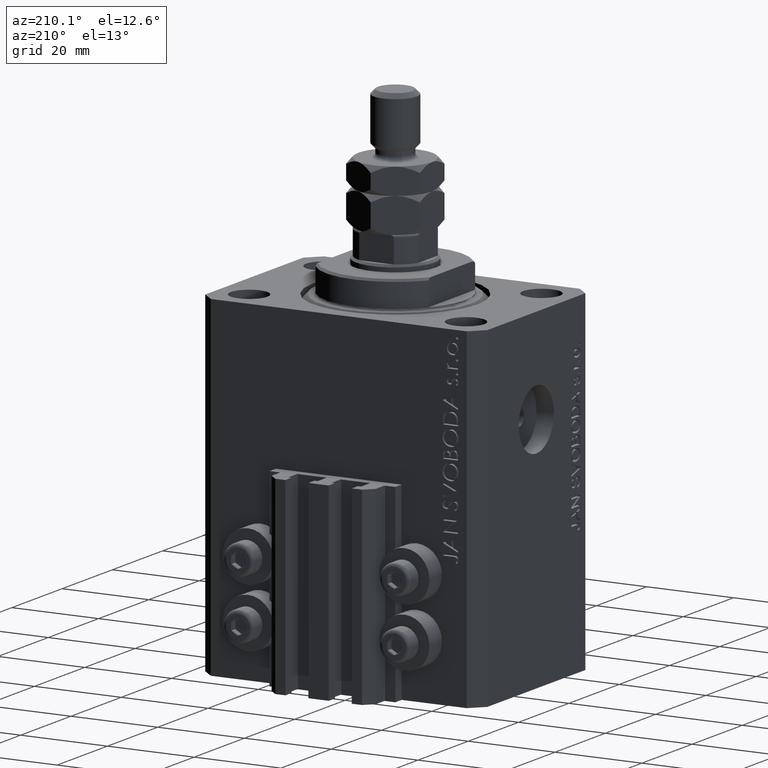
[diagram: clean part render]
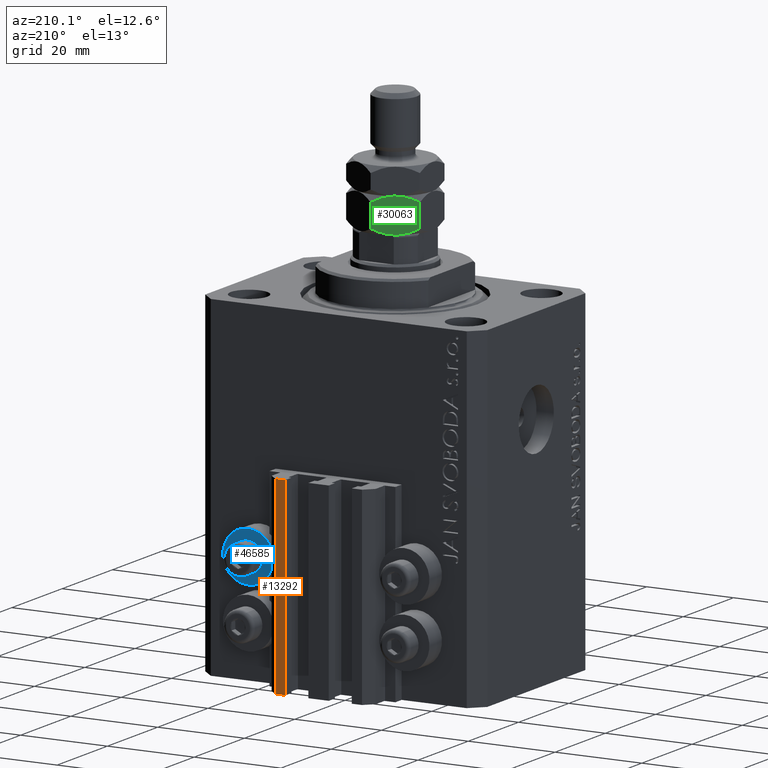
[diagram: same view with three faces highlighted in distinct colors, each labeled with its STEP entity id]
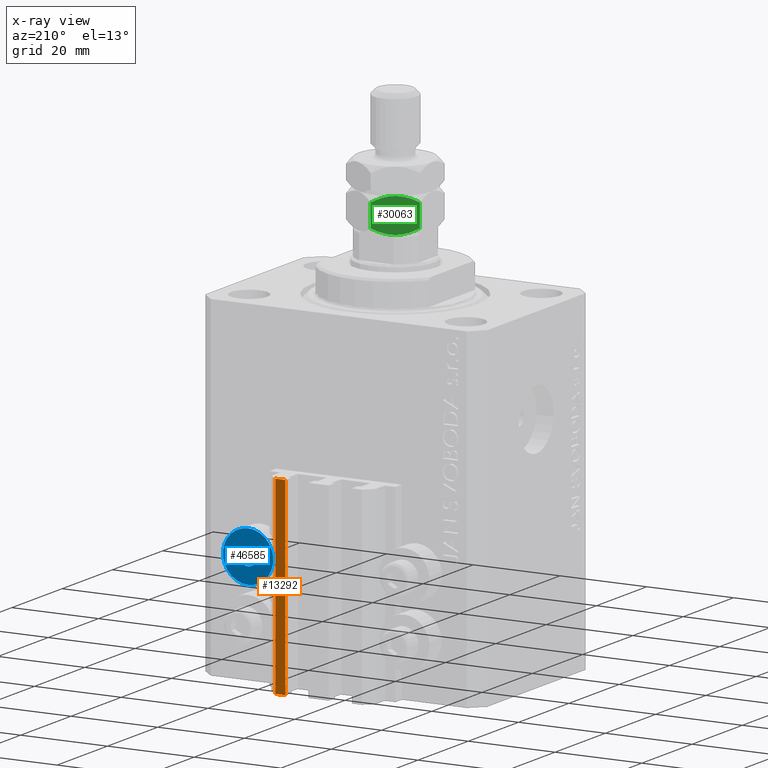
[diagram: x-ray of the same camera — body ghosted, the three highlighted faces saturated]
A machine part, auxiliary view with three faces highlighted in distinct colors.
The next image is the same camera in x-ray (body ghosted, the three faces saturated) — at least one of them is partly hidden behind the body in this view.
Their STEP definitions:

[orange] entity #13292 — the highlighted planar face has unit normal (-0, 1, 0).
#148 = VECTOR ( 'NONE', #20767, 1000.000000000000000 ) ;
#1205 = AXIS2_PLACEMENT_3D ( 'NONE', #8122, #7392, #26934 ) ;
#2760 = CARTESIAN_POINT ( 'NONE',  ( 7.649999999999995026, 30.49999999999949196, -77.00000000000000000 ) ) ;
#5203 = EDGE_CURVE ( 'NONE', #42327, #41005, #48225, .T. ) ;
#5549 = VECTOR ( 'NONE', #31768, 1000.000000000000000 ) ;
#6007 = DIRECTION ( 'NONE',  ( 0.000000000000000000, 0.000000000000000000, 1.000000000000000000 ) ) ;
#6423 = CARTESIAN_POINT ( 'NONE',  ( 9.999999999999994671, 30.49999999999949551, -33.00000000000000000 ) ) ;
#6477 = VECTOR ( 'NONE', #11052, 1000.000000000000000 ) ;
#7392 = DIRECTION ( 'NONE',  ( -1.476360405086644852E-15, 1.000000000000000000, 0.000000000000000000 ) ) ;
#8122 = CARTESIAN_POINT ( 'NONE',  ( 9.999999999999994671, 30.49999999999949551, -77.00000000000000000 ) ) ;
#9183 = EDGE_CURVE ( 'NONE', #41005, #42548, #32273, .T. ) ;
#11052 = DIRECTION ( 'NONE',  ( -1.000000000000000000, -1.476360405086644852E-15, 0.000000000000000000 ) ) ;
#11392 = ORIENTED_EDGE ( 'NONE', *, *, #9183, .T. ) ;
#11977 = EDGE_CURVE ( 'NONE', #42327, #19999, #28050, .T. ) ;
#12084 = PLANE ( 'NONE',  #1205 ) ;
#13292 = ADVANCED_FACE ( 'NONE', ( #46039 ), #12084, .T. ) ;
#17987 = CARTESIAN_POINT ( 'NONE',  ( 9.999999999999994671, 30.49999999999949551, -77.00000000000000000 ) ) ;
#18777 = LINE ( 'NONE', #33908, #148 ) ;
#19999 = VERTEX_POINT ( 'NONE', #6423 ) ;
#20767 = DIRECTION ( 'NONE',  ( -1.000000000000000000, -1.476360405086644852E-15, 0.000000000000000000 ) ) ;
#23027 = VECTOR ( 'NONE', #6007, 1000.000000000000000 ) ;
#24790 = ORIENTED_EDGE ( 'NONE', *, *, #5203, .T. ) ;
#26934 = DIRECTION ( 'NONE',  ( -1.000000000000000000, -1.476360405086644852E-15, 0.000000000000000000 ) ) ;
#28050 = LINE ( 'NONE', #35735, #5549 ) ;
#31340 = ORIENTED_EDGE ( 'NONE', *, *, #45147, .F. ) ;
#31768 = DIRECTION ( 'NONE',  ( 0.000000000000000000, 0.000000000000000000, 1.000000000000000000 ) ) ;
#32273 = LINE ( 'NONE', #2760, #23027 ) ;
#32631 = CARTESIAN_POINT ( 'NONE',  ( 9.999999999999994671, 30.49999999999949551, -77.00000000000000000 ) ) ;
#33908 = CARTESIAN_POINT ( 'NONE',  ( 9.999999999999994671, 30.49999999999949551, -33.00000000000000000 ) ) ;
#33949 = CARTESIAN_POINT ( 'NONE',  ( 7.649999999999995026, 30.49999999999949196, -77.00000000000000000 ) ) ;
#35735 = CARTESIAN_POINT ( 'NONE',  ( 9.999999999999994671, 30.49999999999949551, -77.00000000000000000 ) ) ;
#36991 = ORIENTED_EDGE ( 'NONE', *, *, #11977, .F. ) ;
#41005 = VERTEX_POINT ( 'NONE', #33949 ) ;
#42327 = VERTEX_POINT ( 'NONE', #32631 ) ;
#42548 = VERTEX_POINT ( 'NONE', #44146 ) ;
#44146 = CARTESIAN_POINT ( 'NONE',  ( 7.649999999999995026, 30.49999999999949196, -33.00000000000000000 ) ) ;
#45147 = EDGE_CURVE ( 'NONE', #19999, #42548, #18777, .T. ) ;
#45884 = EDGE_LOOP ( 'NONE', ( #31340, #36991, #24790, #11392 ) ) ;
#46039 = FACE_OUTER_BOUND ( 'NONE', #45884, .T. ) ;
#48225 = LINE ( 'NONE', #17987, #6477 ) ;

[blue] entity #46585 — the highlighted planar face has unit normal (0, -1, 0).
#2629 = CARTESIAN_POINT ( 'NONE',  ( 18.00000000000000355, 27.49999999996051514, -52.40000000000000568 ) ) ;
#4063 = DIRECTION ( 'NONE',  ( 0.000000000000000000, -1.000000000000000000, -0.000000000000000000 ) ) ;
#4915 = DIRECTION ( 'NONE',  ( 0.000000000000000000, 0.000000000000000000, 1.000000000000000000 ) ) ;
#5824 = ORIENTED_EDGE ( 'NONE', *, *, #21295, .T. ) ;
#6261 = DIRECTION ( 'NONE',  ( 0.000000000000000000, 0.000000000000000000, 1.000000000000000000 ) ) ;
#7009 = ORIENTED_EDGE ( 'NONE', *, *, #27446, .T. ) ;
#7987 = VERTEX_POINT ( 'NONE', #2629 ) ;
#8300 = DIRECTION ( 'NONE',  ( -0.000000000000000000, -1.000000000000000000, -0.000000000000000000 ) ) ;
#9690 = AXIS2_PLACEMENT_3D ( 'NONE', #19479, #34597, #12541 ) ;
#11725 = PLANE ( 'NONE',  #40545 ) ;
#12541 = DIRECTION ( 'NONE',  ( 0.000000000000000000, 0.000000000000000000, 1.000000000000000000 ) ) ;
#12705 = EDGE_CURVE ( 'NONE', #24703, #17518, #39070, .T. ) ;
#12745 = AXIS2_PLACEMENT_3D ( 'NONE', #40460, #36498, #6261 ) ;
#15204 = FACE_OUTER_BOUND ( 'NONE', #29983, .T. ) ;
#15979 = CARTESIAN_POINT ( 'NONE',  ( 18.00000000000000355, 27.49999999996051514, -50.39999999999999858 ) ) ;
#17518 = VERTEX_POINT ( 'NONE', #45398 ) ;
#19479 = CARTESIAN_POINT ( 'NONE',  ( 18.00000000000000355, 27.49999999996051514, -50.39999999999999858 ) ) ;
#19530 = DIRECTION ( 'NONE',  ( -0.000000000000000000, -1.000000000000000000, -0.000000000000000000 ) ) ;
#21295 = EDGE_CURVE ( 'NONE', #7987, #28980, #24712, .T. ) ;
#23202 = AXIS2_PLACEMENT_3D ( 'NONE', #15979, #8300, #46222 ) ;
#24703 = VERTEX_POINT ( 'NONE', #33809 ) ;
#24712 = CIRCLE ( 'NONE', #9690, 2.000000000000001776 ) ;
#26329 = EDGE_LOOP ( 'NONE', ( #7009, #5824 ) ) ;
#26950 = CARTESIAN_POINT ( 'NONE',  ( 18.00000000000000355, 27.49999999996051514, -48.39999999999999858 ) ) ;
#27446 = EDGE_CURVE ( 'NONE', #28980, #7987, #42808, .T. ) ;
#28980 = VERTEX_POINT ( 'NONE', #26950 ) ;
#29046 = EDGE_CURVE ( 'NONE', #17518, #24703, #33667, .T. ) ;
#29983 = EDGE_LOOP ( 'NONE', ( #46636, #44446 ) ) ;
#31668 = CARTESIAN_POINT ( 'NONE',  ( 18.00000000000000355, 27.49999999996051514, -50.39999999999999858 ) ) ;
#33667 = CIRCLE ( 'NONE', #40010, 5.799999999999999822 ) ;
#33797 = CARTESIAN_POINT ( 'NONE',  ( 12.20000000000000284, 27.49999999996051514, -50.39999999999999858 ) ) ;
#33809 = CARTESIAN_POINT ( 'NONE',  ( 18.00000000000000355, 27.49999999996051514, -56.20000000000000284 ) ) ;
#34296 = DIRECTION ( 'NONE',  ( -0.000000000000000000, 0.000000000000000000, -1.000000000000000000 ) ) ;
#34597 = DIRECTION ( 'NONE',  ( -0.000000000000000000, -1.000000000000000000, -0.000000000000000000 ) ) ;
#36498 = DIRECTION ( 'NONE',  ( -0.000000000000000000, -1.000000000000000000, -0.000000000000000000 ) ) ;
#39070 = CIRCLE ( 'NONE', #23202, 5.799999999999999822 ) ;
#40010 = AXIS2_PLACEMENT_3D ( 'NONE', #31668, #19530, #4915 ) ;
#40460 = CARTESIAN_POINT ( 'NONE',  ( 18.00000000000000355, 27.49999999996051514, -50.39999999999999858 ) ) ;
#40545 = AXIS2_PLACEMENT_3D ( 'NONE', #33797, #4063, #34296 ) ;
#42808 = CIRCLE ( 'NONE', #12745, 2.000000000000001776 ) ;
#44446 = ORIENTED_EDGE ( 'NONE', *, *, #12705, .F. ) ;
#44945 = FACE_BOUND ( 'NONE', #26329, .T. ) ;
#45398 = CARTESIAN_POINT ( 'NONE',  ( 18.00000000000000355, 27.49999999996051514, -44.60000000000000142 ) ) ;
#46222 = DIRECTION ( 'NONE',  ( 0.000000000000000000, 0.000000000000000000, 1.000000000000000000 ) ) ;
#46585 = ADVANCED_FACE ( 'NONE', ( #44945, #15204 ), #11725, .F. ) ;
#46636 = ORIENTED_EDGE ( 'NONE', *, *, #29046, .F. ) ;

[green] entity #30063 — the highlighted planar face has unit normal (0.5, -0.866, 0).
#107 = B_SPLINE_CURVE_WITH_KNOTS ( 'NONE', 3,
 ( #31844, #5090, #4839, #16723, #874, #42737 ),
 .UNSPECIFIED., .F., .F.,
 ( 4, 2, 4 ),
 ( 0.005087299150080244227, 0.007613005268011861781, 0.01013871138594347847 ),
 .UNSPECIFIED. ) ;
#713 = CARTESIAN_POINT ( 'NONE',  ( 0.000000000000000000, 9.814954576223636096, 8.000000000000000000 ) ) ;
#874 = CARTESIAN_POINT ( 'NONE',  ( -0.6656893889372521578, 9.430618628324037189, 0.9306186283239277213 ) ) ;
#2092 = VERTEX_POINT ( 'NONE', #25173 ) ;
#2257 = VERTEX_POINT ( 'NONE', #23679 ) ;
#3561 = ORIENTED_EDGE ( 'NONE', *, *, #24620, .F. ) ;
#3582 = CARTESIAN_POINT ( 'NONE',  ( -2.407069963478076779, 8.425232084851307590, 7.746375910675348919 ) ) ;
#4839 = CARTESIAN_POINT ( 'NONE',  ( -2.784079206026081721, 8.207565697179243003, 0.1305202873832130295 ) ) ;
#5090 = CARTESIAN_POINT ( 'NONE',  ( -3.510754653168324246, 7.788019432158175270, -2.226002585384300502E-15 ) ) ;
#6860 = EDGE_LOOP ( 'NONE', ( #48810, #44839, #43579, #3561, #25127, #22012 ) ) ;
#8216 = EDGE_CURVE ( 'NONE', #2092, #45825, #107, .T. ) ;
#8444 = CARTESIAN_POINT ( 'NONE',  ( -4.249999999999994671, 7.361215932167727516, 8.000000000000000000 ) ) ;
#8865 = VECTOR ( 'NONE', #15638, 1000.000000000000000 ) ;
#8922 = CARTESIAN_POINT ( 'NONE',  ( -4.249999999999996447, 7.361215932167731957, 0.000000000000000000 ) ) ;
#11661 = VERTEX_POINT ( 'NONE', #31577 ) ;
#11878 = CARTESIAN_POINT ( 'NONE',  ( -6.092930036521920556, 6.297199779484152771, 0.2536240893246534123 ) ) ;
#12659 = CARTESIAN_POINT ( 'NONE',  ( -7.834310611062749174, 5.291813236011422283, 7.069381371676069392 ) ) ;
#13759 = CARTESIAN_POINT ( 'NONE',  ( -8.500000000000001776, 4.907477288111821601, 6.685045423776368345 ) ) ;
#15638 = DIRECTION ( 'NONE',  ( -0.000000000000000000, -0.000000000000000000, -1.000000000000000000 ) ) ;
#15878 = CARTESIAN_POINT ( 'NONE',  ( -4.989245346831672201, 6.934412432177284202, 8.000000000000005329 ) ) ;
#16133 = CARTESIAN_POINT ( 'NONE',  ( -8.500000000000001776, 4.907477288111821601, 6.685045423776368345 ) ) ;
#16345 = CARTESIAN_POINT ( 'NONE',  ( -8.500000000000001776, 4.907477288111821601, 1.314954576223634097 ) ) ;
#16382 = CARTESIAN_POINT ( 'NONE',  ( -8.500000000000001776, 4.907477288111821601, 8.000000000000000000 ) ) ;
#16585 = CARTESIAN_POINT ( 'NONE',  ( -5.733718739115173157, 6.504590518737894733, 0.1608217079418319817 ) ) ;
#16723 = CARTESIAN_POINT ( 'NONE',  ( -1.350892646810552433, 9.035016342941277756, 0.6009384127361191430 ) ) ;
#18678 = CARTESIAN_POINT ( 'NONE',  ( -4.249999999999994671, 7.361215932167727516, 8.000000000000000000 ) ) ;
#19598 = CARTESIAN_POINT ( 'NONE',  ( -5.715920793973915615, 6.514866167156221799, 7.869479712616790579 ) ) ;
#20710 = DIRECTION ( 'NONE',  ( 0.4999999999999995559, -0.8660254037844389297, 0.000000000000000000 ) ) ;
#21691 = CARTESIAN_POINT ( 'NONE',  ( -2.175848833159079736E-16, 9.814954576223636096, 6.685045423776372786 ) ) ;
#21966 = EDGE_CURVE ( 'NONE', #48203, #37144, #31008, .T. ) ;
#22012 = ORIENTED_EDGE ( 'NONE', *, *, #8216, .F. ) ;
#22482 = EDGE_CURVE ( 'NONE', #2257, #45825, #42586, .T. ) ;
#23570 = CARTESIAN_POINT ( 'NONE',  ( -7.149107353189443792, 5.687415521394179940, 7.399061587263880746 ) ) ;
#23679 = CARTESIAN_POINT ( 'NONE',  ( -2.175848833159079736E-16, 9.814954576223636096, 6.685045423776372786 ) ) ;
#24042 = CARTESIAN_POINT ( 'NONE',  ( -7.151994807070144233, 5.685748449118888104, 0.6032092124201268168 ) ) ;
#24620 = EDGE_CURVE ( 'NONE', #2257, #11661, #48785, .T. ) ;
#25127 = ORIENTED_EDGE ( 'NONE', *, *, #22482, .T. ) ;
#25173 = CARTESIAN_POINT ( 'NONE',  ( -4.249999999999996447, 7.361215932167731957, 0.000000000000000000 ) ) ;
#26376 = CARTESIAN_POINT ( 'NONE',  ( -3.499970675361005590, 7.794245564648163871, 7.966263250401637741 ) ) ;
#26807 = B_SPLINE_CURVE_WITH_KNOTS ( 'NONE', 3,
 ( #8444, #15878, #19598, #23570, #12659, #16133 ),
 .UNSPECIFIED., .F., .F.,
 ( 4, 2, 4 ),
 ( 0.005087299150080232084, 0.007613005268011854842, 0.01013871138594347847 ),
 .UNSPECIFIED. ) ;
#27061 = VECTOR ( 'NONE', #42085, 1000.000000000000000 ) ;
#29078 = FACE_OUTER_BOUND ( 'NONE', #6860, .T. ) ;
#30063 = ADVANCED_FACE ( 'NONE', ( #29078 ), #40749, .F. ) ;
#30506 = AXIS2_PLACEMENT_3D ( 'NONE', #36068, #20710, #43741 ) ;
#30709 = CARTESIAN_POINT ( 'NONE',  ( -4.622229978650556070, 7.146308853793382987, -2.126899730555548151E-15 ) ) ;
#31008 = LINE ( 'NONE', #16382, #8865 ) ;
#31577 = CARTESIAN_POINT ( 'NONE',  ( -4.249999999999994671, 7.361215932167727516, 8.000000000000000000 ) ) ;
#31844 = CARTESIAN_POINT ( 'NONE',  ( -4.249999999999996447, 7.361215932167731957, 0.000000000000000000 ) ) ;
#33567 = CARTESIAN_POINT ( 'NONE',  ( -0.6664608216042845479, 9.430173241466064837, 7.069826758533944044 ) ) ;
#33650 = EDGE_CURVE ( 'NONE', #37144, #2092, #35086, .T. ) ;
#34943 = CARTESIAN_POINT ( 'NONE',  ( -7.833539178395718672, 5.292258622869395523, 0.9301732414660626169 ) ) ;
#35086 = B_SPLINE_CURVE_WITH_KNOTS ( 'NONE', 3,
 ( #16345, #34943, #24042, #11878, #16585, #35428, #30709, #8922 ),
 .UNSPECIFIED., .F., .F.,
 ( 4, 2, 2, 4 ),
 ( 2.544313836674336100E-07, 0.002543776790731957973, 0.003815537970406101317, 0.005087299150080244227 ),
 .UNSPECIFIED. ) ;
#35428 = CARTESIAN_POINT ( 'NONE',  ( -5.000029324638989081, 6.928186299687298266, 0.03373674959836554799 ) ) ;
#36068 = CARTESIAN_POINT ( 'NONE',  ( 0.000000000000000000, 9.814954576223636096, 8.000000000000000000 ) ) ;
#37144 = VERTEX_POINT ( 'NONE', #38224 ) ;
#38224 = CARTESIAN_POINT ( 'NONE',  ( -8.500000000000001776, 4.907477288111821601, 1.314954576223634097 ) ) ;
#40749 = PLANE ( 'NONE',  #30506 ) ;
#42085 = DIRECTION ( 'NONE',  ( -0.000000000000000000, -0.000000000000000000, -1.000000000000000000 ) ) ;
#42586 = LINE ( 'NONE', #713, #27061 ) ;
#42737 = CARTESIAN_POINT ( 'NONE',  ( 1.960053746949402388E-16, 9.814954576223636096, 1.314954576223628546 ) ) ;
#42776 = EDGE_CURVE ( 'NONE', #11661, #48203, #26807, .T. ) ;
#43579 = ORIENTED_EDGE ( 'NONE', *, *, #42776, .F. ) ;
#43741 = DIRECTION ( 'NONE',  ( 0.8660254037844389297, 0.4999999999999995559, 0.000000000000000000 ) ) ;
#44716 = CARTESIAN_POINT ( 'NONE',  ( -1.348005192929855323, 9.036683415216572257, 7.396790787579877069 ) ) ;
#44839 = ORIENTED_EDGE ( 'NONE', *, *, #21966, .F. ) ;
#44958 = CARTESIAN_POINT ( 'NONE',  ( -2.766281260884825510, 8.217841345597568292, 7.839178292058173625 ) ) ;
#45825 = VERTEX_POINT ( 'NONE', #47654 ) ;
#47654 = CARTESIAN_POINT ( 'NONE',  ( 1.960053746949402388E-16, 9.814954576223636096, 1.314954576223628546 ) ) ;
#48203 = VERTEX_POINT ( 'NONE', #13759 ) ;
#48681 = CARTESIAN_POINT ( 'NONE',  ( -3.877770021349439045, 7.576123010542077374, 8.000000000000001776 ) ) ;
#48785 = B_SPLINE_CURVE_WITH_KNOTS ( 'NONE', 3,
 ( #21691, #33567, #44716, #3582, #44958, #26376, #48681, #18678 ),
 .UNSPECIFIED., .F., .F.,
 ( 4, 2, 2, 4 ),
 ( 2.544313836662431582E-07, 0.002543776790731950600, 0.003815537970406090908, 0.005087299150080232084 ),
 .UNSPECIFIED. ) ;
#48810 = ORIENTED_EDGE ( 'NONE', *, *, #33650, .F. ) ;